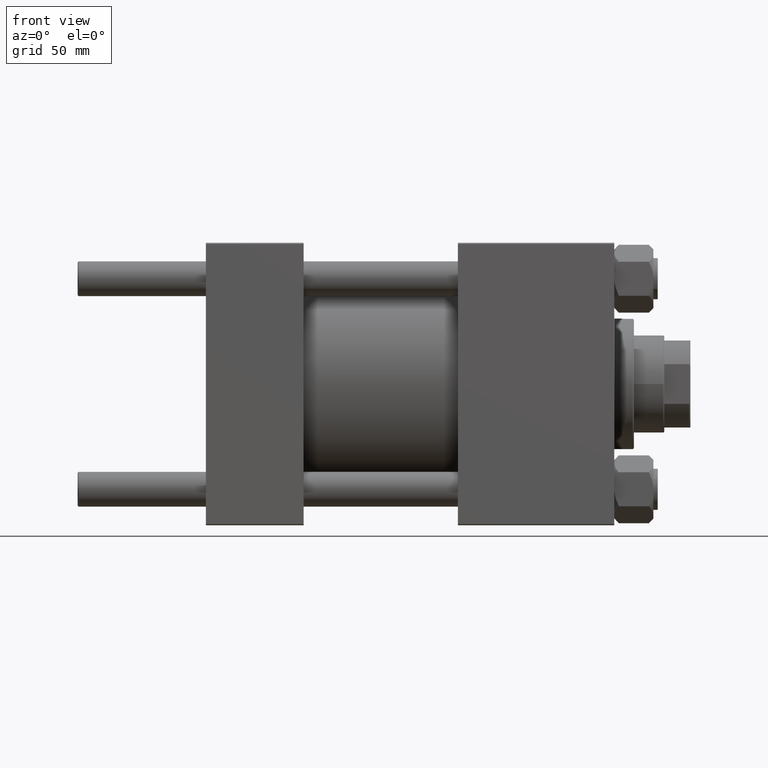
[diagram: clean part render]
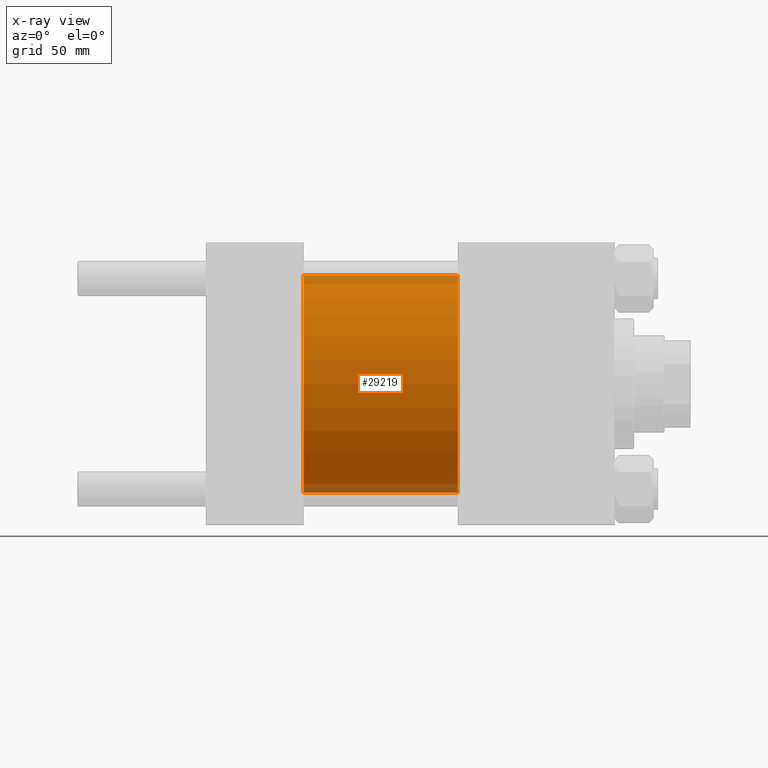
[diagram: x-ray — body ghosted, one internal face saturated and labeled with its STEP entity id]
A machine part, front view, then the same camera in x-ray: the body is ghosted and one INTERNAL B-rep face — a face not visible from any outside direction — is saturated and labeled: STEP entity #29219.
In plain terms, the highlighted cylindrical surface (partial cylindrical patch) has radius 50 mm, axis along (-1, -0, -0).
Its self-contained STEP definition (entity closure, byte-faithful):
#1596 = DIRECTION ( 'NONE',  ( 0.000000000000000000, 0.000000000000000000, -1.000000000000000000 ) ) ;
#7040 = AXIS2_PLACEMENT_3D ( 'NONE', #17044, #37625, #13471 ) ;
#7305 = DIRECTION ( 'NONE',  ( -1.000000000000000000, -0.000000000000000000, -0.000000000000000000 ) ) ;
#7900 = EDGE_CURVE ( 'NONE', #29151, #39247, #42784, .T. ) ;
#7920 = CARTESIAN_POINT ( 'NONE',  ( 115.9999999999999858, 0.000000000000000000, 50.00000000000000000 ) ) ;
#8712 = VECTOR ( 'NONE', #36108, 1000.000000000000000 ) ;
#9377 = CARTESIAN_POINT ( 'NONE',  ( 115.9999999999999858, 6.123233995736766085E-15, -50.00000000000000000 ) ) ;
#10497 = EDGE_CURVE ( 'NONE', #15466, #39975, #21359, .T. ) ;
#12511 = EDGE_CURVE ( 'NONE', #29151, #15466, #18447, .T. ) ;
#13471 = DIRECTION ( 'NONE',  ( 0.000000000000000000, 0.000000000000000000, -1.000000000000000000 ) ) ;
#14399 = ORIENTED_EDGE ( 'NONE', *, *, #43327, .F. ) ;
#14921 = FACE_OUTER_BOUND ( 'NONE', #41219, .T. ) ;
#15466 = VERTEX_POINT ( 'NONE', #45791 ) ;
#17044 = CARTESIAN_POINT ( 'NONE',  ( 115.9999999999999858, 0.000000000000000000, 0.000000000000000000 ) ) ;
#17613 = VECTOR ( 'NONE', #27774, 1000.000000000000000 ) ;
#17634 = CIRCLE ( 'NONE', #49278, 50.00000000000000000 ) ;
#18447 = CIRCLE ( 'NONE', #7040, 50.00000000000000000 ) ;
#19513 = CARTESIAN_POINT ( 'NONE',  ( 115.9999999999999858, 0.000000000000000000, 50.00000000000000000 ) ) ;
#21359 = LINE ( 'NONE', #9377, #8712 ) ;
#24161 = ORIENTED_EDGE ( 'NONE', *, *, #10497, .T. ) ;
#24762 = CARTESIAN_POINT ( 'NONE',  ( 45.00000000000000000, 0.000000000000000000, 0.000000000000000000 ) ) ;
#26649 = CARTESIAN_POINT ( 'NONE',  ( 115.9999999999999858, 0.000000000000000000, 0.000000000000000000 ) ) ;
#27361 = ORIENTED_EDGE ( 'NONE', *, *, #12511, .T. ) ;
#27774 = DIRECTION ( 'NONE',  ( -1.000000000000000000, -0.000000000000000000, -0.000000000000000000 ) ) ;
#29151 = VERTEX_POINT ( 'NONE', #19513 ) ;
#29219 = ADVANCED_FACE ( 'NONE', ( #14921 ), #45974, .F. ) ;
#33802 = CARTESIAN_POINT ( 'NONE',  ( 45.00000000000000000, 6.123233995736766085E-15, -50.00000000000000000 ) ) ;
#36108 = DIRECTION ( 'NONE',  ( -1.000000000000000000, -0.000000000000000000, -0.000000000000000000 ) ) ;
#36704 = DIRECTION ( 'NONE',  ( 1.000000000000000000, 0.000000000000000000, 0.000000000000000000 ) ) ;
#36813 = AXIS2_PLACEMENT_3D ( 'NONE', #26649, #7305, #38331 ) ;
#37625 = DIRECTION ( 'NONE',  ( 1.000000000000000000, 0.000000000000000000, 0.000000000000000000 ) ) ;
#38331 = DIRECTION ( 'NONE',  ( 0.000000000000000000, 0.000000000000000000, 1.000000000000000000 ) ) ;
#39247 = VERTEX_POINT ( 'NONE', #44746 ) ;
#39975 = VERTEX_POINT ( 'NONE', #33802 ) ;
#41219 = EDGE_LOOP ( 'NONE', ( #27361, #24161, #14399, #44412 ) ) ;
#42784 = LINE ( 'NONE', #7920, #17613 ) ;
#43327 = EDGE_CURVE ( 'NONE', #39247, #39975, #17634, .T. ) ;
#44412 = ORIENTED_EDGE ( 'NONE', *, *, #7900, .F. ) ;
#44746 = CARTESIAN_POINT ( 'NONE',  ( 45.00000000000000000, 0.000000000000000000, 50.00000000000000000 ) ) ;
#45791 = CARTESIAN_POINT ( 'NONE',  ( 115.9999999999999858, 6.123233995736766085E-15, -50.00000000000000000 ) ) ;
#45974 = CYLINDRICAL_SURFACE ( 'NONE', #36813, 50.00000000000000000 ) ;
#49278 = AXIS2_PLACEMENT_3D ( 'NONE', #24762, #36704, #1596 ) ;